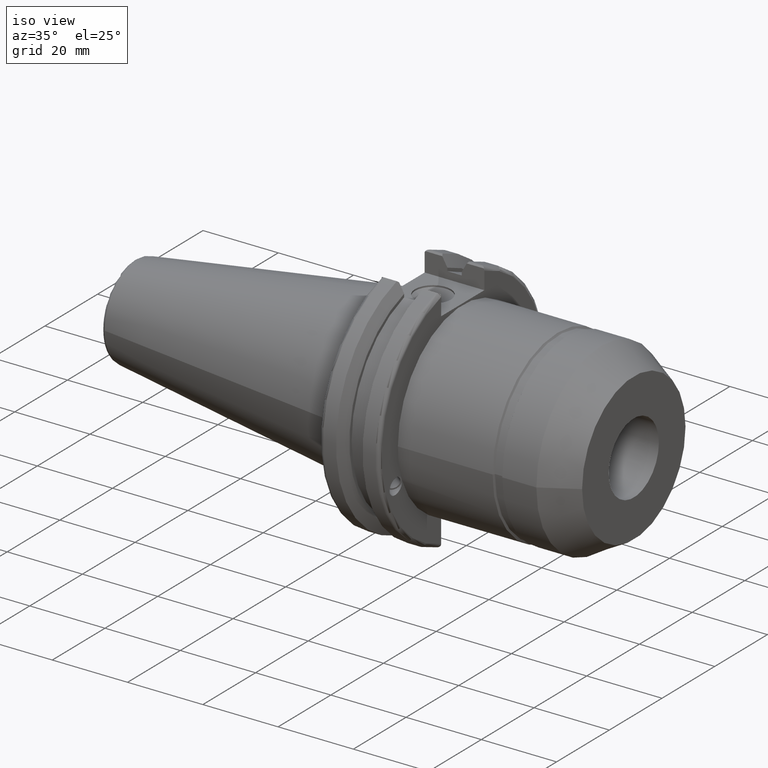
[diagram: clean part render]
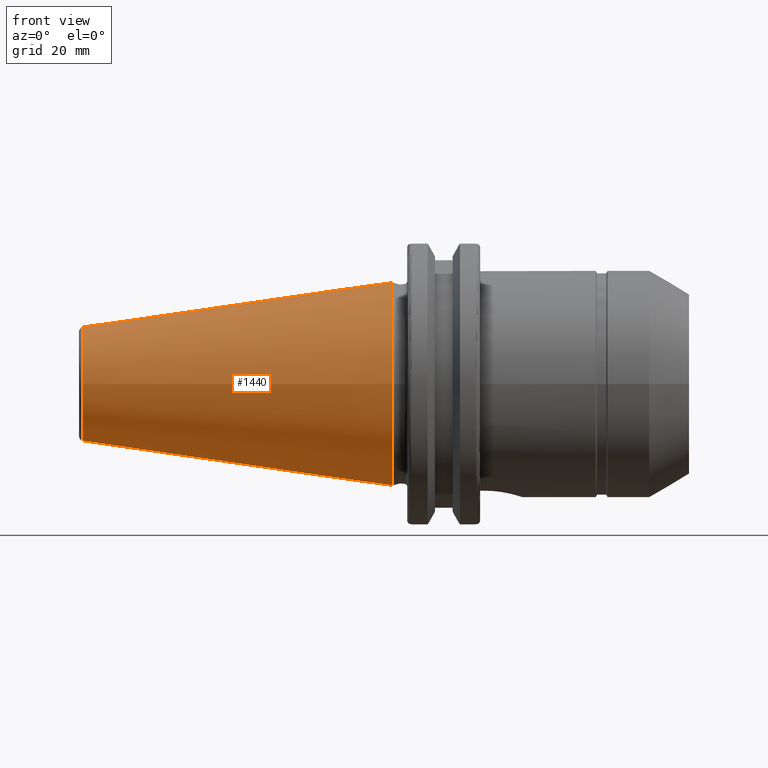
[diagram: tour spotlight — one face highlighted and labeled with its STEP entity id]
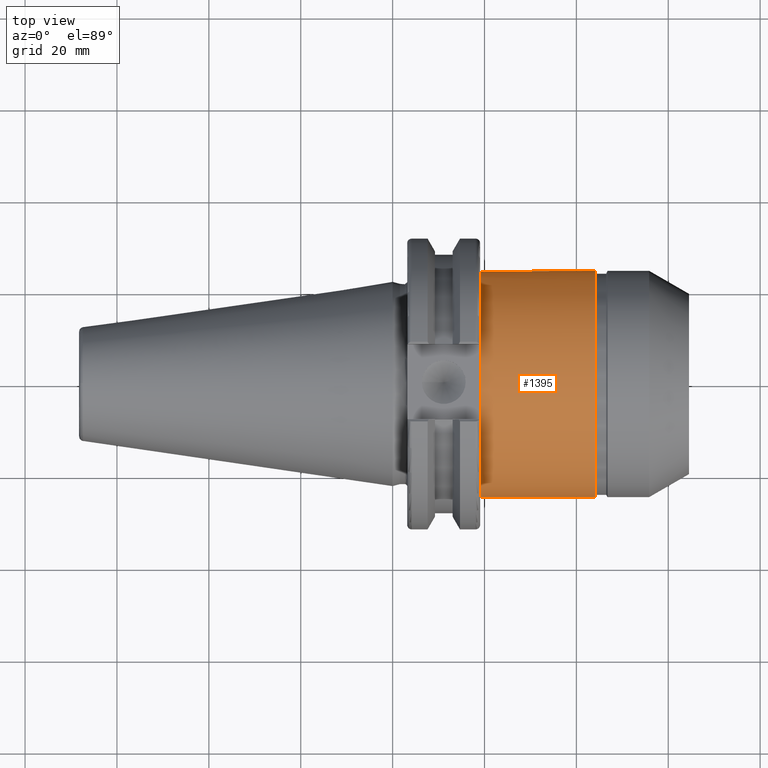
[diagram: tour spotlight — one face highlighted and labeled with its STEP entity id]
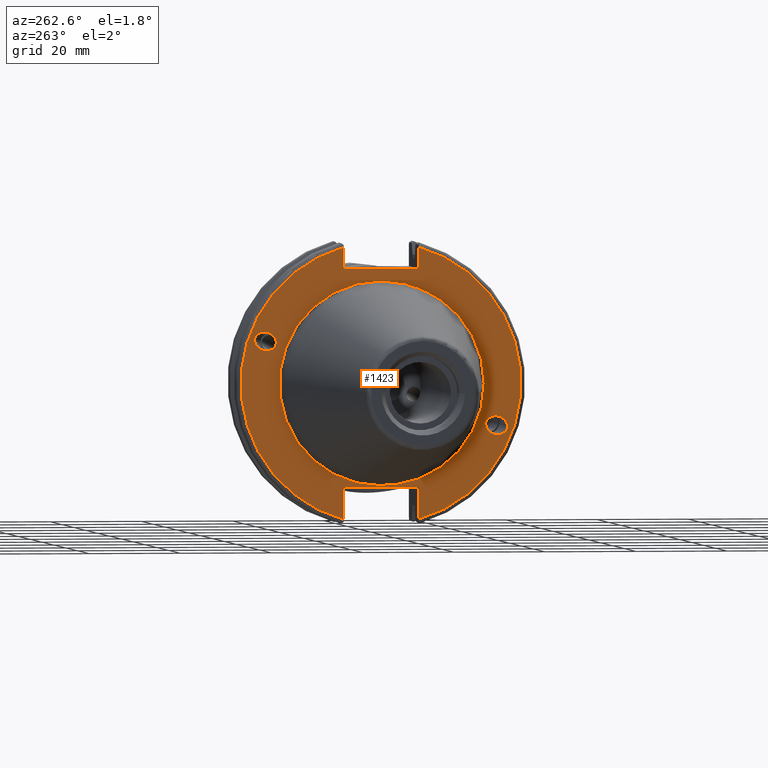
[diagram: tour spotlight — one face highlighted and labeled with its STEP entity id]
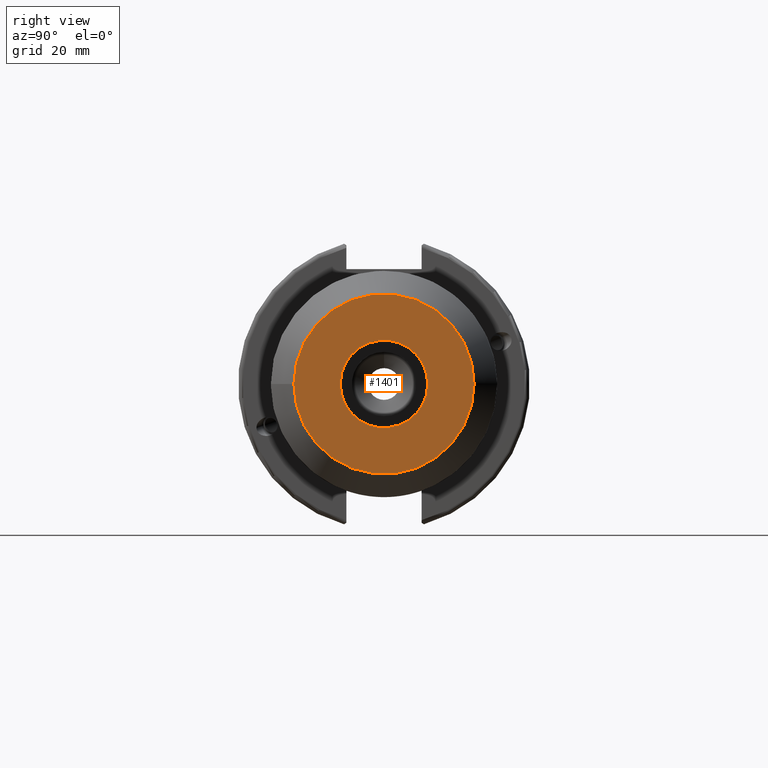
[diagram: tour spotlight — one face highlighted and labeled with its STEP entity id]
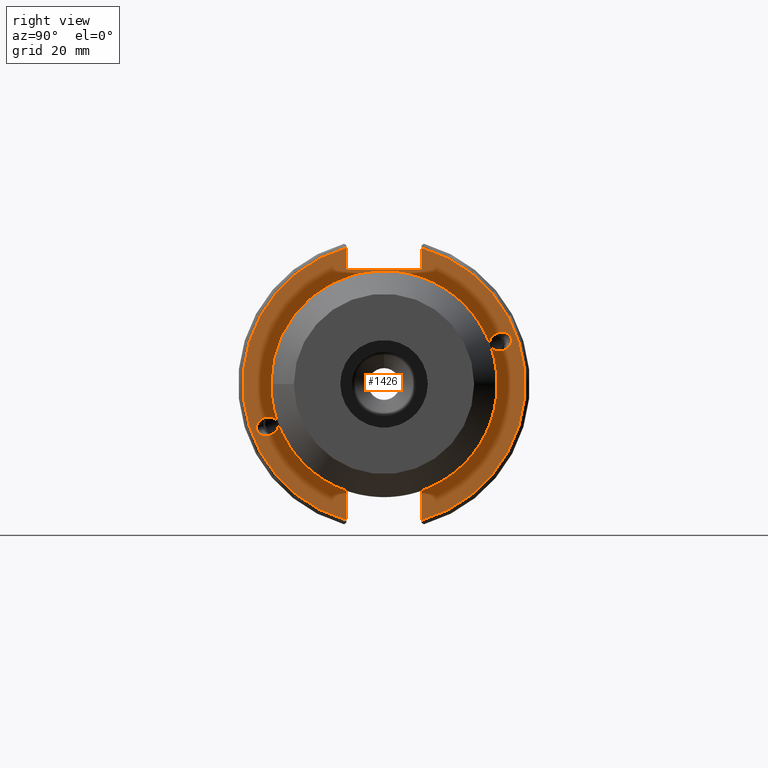
[diagram: tour spotlight — one face highlighted and labeled with its STEP entity id]
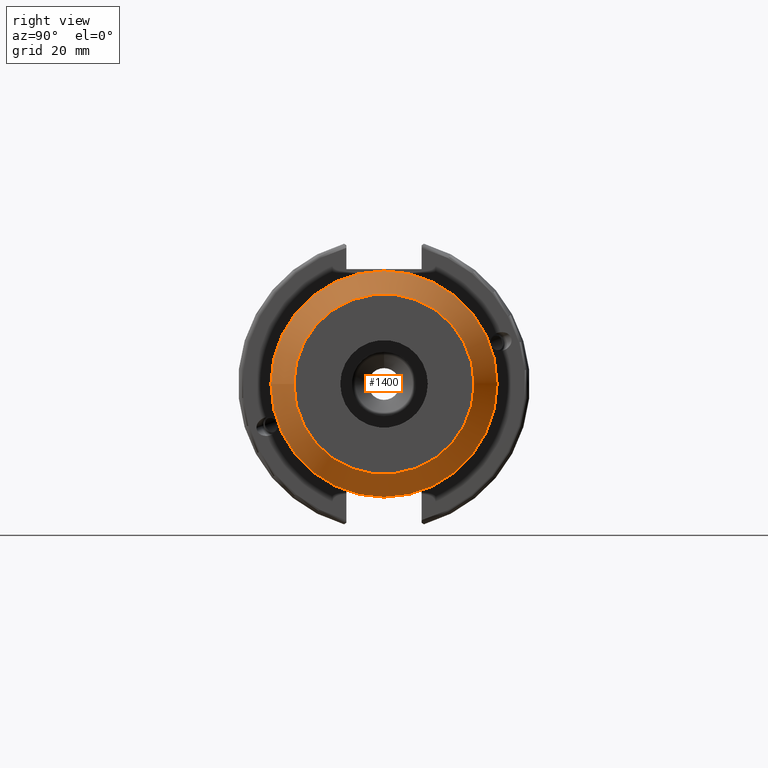
[diagram: tour spotlight — one face highlighted and labeled with its STEP entity id]
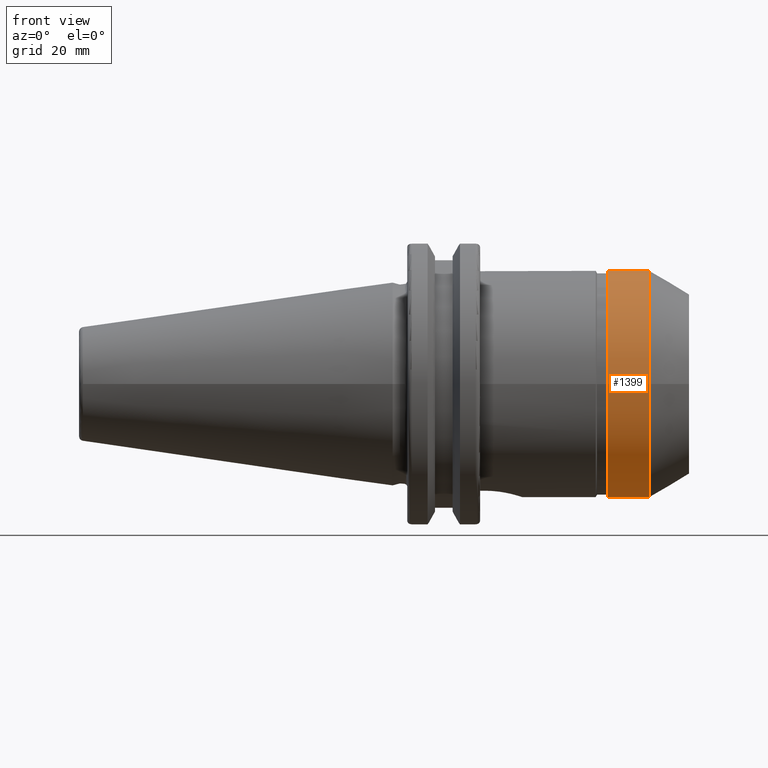
[diagram: tour spotlight — one face highlighted and labeled with its STEP entity id]
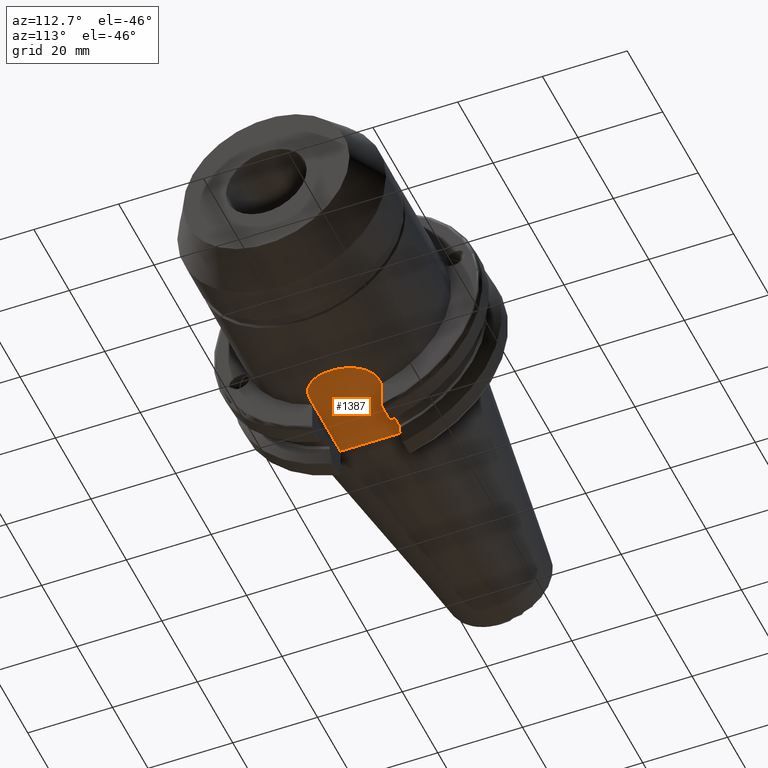
[diagram: tour spotlight — one face highlighted and labeled with its STEP entity id]
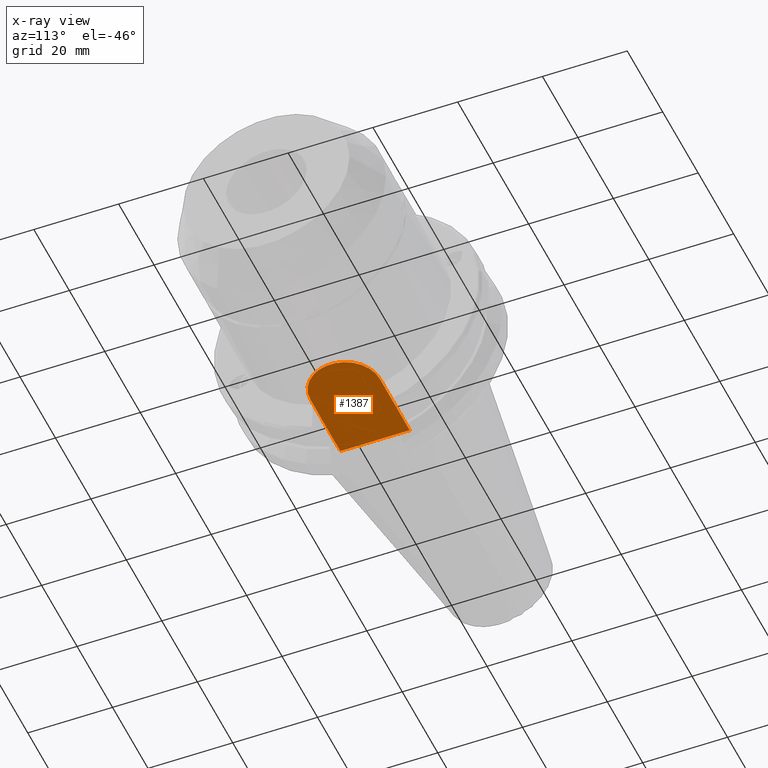
[diagram: x-ray of the same camera — body ghosted, this tour face saturated]
A machine part: a face-by-face anatomy tour. The part has 83 B-rep faces; the first image is the clean iso view, then the 8 largest visible faces are spotlighted one at a time (largest first), each with its STEP entity span.

Face 1 — front view, entity #1440. In plain terms, the highlighted conical surface has half-angle 8.297 deg.
Definition (entity closure, byte-faithful):
#136=CONICAL_SURFACE('',#1628,17.2484375,0.144812498238939);
#201=FACE_OUTER_BOUND('',#295,.T.);
#295=EDGE_LOOP('',(#1232,#1233,#1234,#1235,#1236));
#390=LINE('',#2708,#471);
#471=VECTOR('',#2021,17.2484375);
#538=CIRCLE('',#1622,12.3966635780937);
#539=CIRCLE('',#1623,12.3966635780937);
#543=CIRCLE('',#1629,22.225);
#680=VERTEX_POINT('',#2695);
#681=VERTEX_POINT('',#2696);
#684=VERTEX_POINT('',#2706);
#876=EDGE_CURVE('',#680,#681,#538,.T.);
#877=EDGE_CURVE('',#681,#680,#539,.T.);
#881=EDGE_CURVE('',#684,#684,#543,.T.);
#882=EDGE_CURVE('',#684,#681,#390,.T.);
#1232=ORIENTED_EDGE('',*,*,#881,.F.);
#1233=ORIENTED_EDGE('',*,*,#882,.T.);
#1234=ORIENTED_EDGE('',*,*,#876,.F.);
#1235=ORIENTED_EDGE('',*,*,#877,.F.);
#1236=ORIENTED_EDGE('',*,*,#882,.F.);
#1440=ADVANCED_FACE('',(#201),#136,.T.);
#1622=AXIS2_PLACEMENT_3D('',#2697,#2005,#2006);
#1623=AXIS2_PLACEMENT_3D('',#2698,#2007,#2008);
#1628=AXIS2_PLACEMENT_3D('',#2705,#2017,#2018);
#1629=AXIS2_PLACEMENT_3D('',#2707,#2019,#2020);
#2005=DIRECTION('center_axis',(-1.,0.,0.));
#2006=DIRECTION('ref_axis',(0.,-1.,3.06161699786838E-17));
#2007=DIRECTION('center_axis',(-1.,0.,0.));
#2008=DIRECTION('ref_axis',(0.,-1.,3.06161699786838E-17));
#2017=DIRECTION('center_axis',(1.,0.,0.));
#2018=DIRECTION('ref_axis',(0.,1.,0.));
#2019=DIRECTION('center_axis',(1.,0.,0.));
#2020=DIRECTION('ref_axis',(0.,0.,-1.));
#2021=DIRECTION('',(-0.989532981063282,0.144306893071729,1.76724974695192E-17));
#2695=CARTESIAN_POINT('',(-67.3943068930717,-1.5181534371019E-15,12.3966635780937));
#2696=CARTESIAN_POINT('',(-67.3943068930718,-12.3966635780937,-1.5181534371019E-15));
#2697=CARTESIAN_POINT('Origin',(-67.3943068930717,0.,-1.89769179637738E-15));
#2698=CARTESIAN_POINT('Origin',(-67.3943068930717,0.,-1.89769179637738E-15));
#2705=CARTESIAN_POINT('Origin',(-34.125,0.,0.));
#2706=CARTESIAN_POINT('',(0.,-22.225,-2.72177751110499E-15));
#2707=CARTESIAN_POINT('Origin',(0.,0.,0.));
#2708=CARTESIAN_POINT('',(-34.125,-17.2484375,-2.11232437746682E-15));

Face 2 — top view, entity #1395. In plain terms, the highlighted cylindrical surface (bore or boss wall) has radius 24.625 mm, axis along (1, 0, 0).
Definition (entity closure, byte-faithful):
#106=B_SPLINE_CURVE_WITH_KNOTS('',3,(#2135,#2136,#2137,#2138,#2139,#2140,
#2141,#2142,#2143,#2144,#2145,#2146,#2147,#2148,#2149,#2150,#2151,#2152),
 .UNSPECIFIED.,.F.,.F.,(4,2,2,2,2,2,2,2,4),(-2.48867977072612,-2.17752332053022,
-1.86636687033433,-1.55535337784869,-1.24433988536306,-0.933326392877421,
-0.622312900391784,-0.311156450195892,0.),.UNSPECIFIED.);
#156=FACE_OUTER_BOUND('',#241,.T.);
#241=EDGE_LOOP('',(#962,#963,#964,#965,#966,#967,#968,#969,#970,#971,#972,
#973));
#333=LINE('',#2202,#414);
#334=LINE('',#2206,#415);
#335=LINE('',#2208,#416);
#414=VECTOR('',#1748,24.625);
#415=VECTOR('',#1753,10.);
#416=VECTOR('',#1754,10.);
#498=CIRCLE('',#1515,24.625);
#499=CIRCLE('',#1519,24.625);
#500=CIRCLE('',#1521,24.625);
#501=CIRCLE('',#1522,24.625);
#502=CIRCLE('',#1523,24.625);
#503=CIRCLE('',#1524,24.625);
#504=CIRCLE('',#1525,24.625);
#564=VERTEX_POINT('',#2133);
#565=VERTEX_POINT('',#2134);
#576=VERTEX_POINT('',#2185);
#578=VERTEX_POINT('',#2188);
#579=VERTEX_POINT('',#2192);
#581=VERTEX_POINT('',#2195);
#582=VERTEX_POINT('',#2199);
#583=VERTEX_POINT('',#2201);
#584=VERTEX_POINT('',#2204);
#585=VERTEX_POINT('',#2207);
#707=EDGE_CURVE('',#564,#565,#106,.T.);
#725=EDGE_CURVE('',#576,#578,#498,.T.);
#728=EDGE_CURVE('',#579,#581,#499,.T.);
#729=EDGE_CURVE('',#582,#582,#500,.T.);
#730=EDGE_CURVE('',#582,#583,#333,.T.);
#731=EDGE_CURVE('',#579,#583,#501,.T.);
#732=EDGE_CURVE('',#584,#581,#502,.T.);
#733=EDGE_CURVE('',#584,#564,#334,.T.);
#734=EDGE_CURVE('',#565,#585,#335,.T.);
#735=EDGE_CURVE('',#576,#585,#503,.T.);
#736=EDGE_CURVE('',#583,#578,#504,.T.);
#962=ORIENTED_EDGE('',*,*,#729,.F.);
#963=ORIENTED_EDGE('',*,*,#730,.T.);
#964=ORIENTED_EDGE('',*,*,#731,.F.);
#965=ORIENTED_EDGE('',*,*,#728,.T.);
#966=ORIENTED_EDGE('',*,*,#732,.F.);
#967=ORIENTED_EDGE('',*,*,#733,.T.);
#968=ORIENTED_EDGE('',*,*,#707,.T.);
#969=ORIENTED_EDGE('',*,*,#734,.T.);
#970=ORIENTED_EDGE('',*,*,#735,.F.);
#971=ORIENTED_EDGE('',*,*,#725,.T.);
#972=ORIENTED_EDGE('',*,*,#736,.F.);
#973=ORIENTED_EDGE('',*,*,#730,.F.);
#1358=CYLINDRICAL_SURFACE('',#1520,24.625);
#1395=ADVANCED_FACE('',(#156),#1358,.T.);
#1515=AXIS2_PLACEMENT_3D('',#2190,#1734,#1735);
#1519=AXIS2_PLACEMENT_3D('',#2197,#1742,#1743);
#1520=AXIS2_PLACEMENT_3D('',#2198,#1744,#1745);
#1521=AXIS2_PLACEMENT_3D('',#2200,#1746,#1747);
#1522=AXIS2_PLACEMENT_3D('',#2203,#1749,#1750);
#1523=AXIS2_PLACEMENT_3D('',#2205,#1751,#1752);
#1524=AXIS2_PLACEMENT_3D('',#2209,#1755,#1756);
#1525=AXIS2_PLACEMENT_3D('',#2210,#1757,#1758);
#1734=DIRECTION('center_axis',(1.,0.,0.));
#1735=DIRECTION('ref_axis',(0.,0.,-1.));
#1742=DIRECTION('center_axis',(1.,0.,0.));
#1743=DIRECTION('ref_axis',(0.,0.,-1.));
#1744=DIRECTION('center_axis',(1.,0.,0.));
#1745=DIRECTION('ref_axis',(0.,1.,0.));
#1746=DIRECTION('center_axis',(1.,0.,0.));
#1747=DIRECTION('ref_axis',(0.,0.,-1.));
#1748=DIRECTION('',(-1.,0.,0.));
#1749=DIRECTION('center_axis',(-1.,0.,0.));
#1750=DIRECTION('ref_axis',(0.,1.,0.));
#1751=DIRECTION('center_axis',(-1.,0.,0.));
#1752=DIRECTION('ref_axis',(0.,1.,0.));
#1753=DIRECTION('',(1.,0.,0.));
#1754=DIRECTION('',(-1.,0.,0.));
#1755=DIRECTION('center_axis',(-1.,0.,0.));
#1756=DIRECTION('ref_axis',(0.,1.,0.));
#1757=DIRECTION('center_axis',(-1.,0.,0.));
#1758=DIRECTION('ref_axis',(0.,1.,0.));
#2133=CARTESIAN_POINT('',(20.05,-8.19,-23.2231463199972));
#2134=CARTESIAN_POINT('',(20.05,8.19,-23.2231463199972));
#2135=CARTESIAN_POINT('Ctrl Pts',(20.05,-8.19,-23.2231463199972));
#2136=CARTESIAN_POINT('Ctrl Pts',(21.0871881673196,-8.19,-23.2231463199972));
#2137=CARTESIAN_POINT('Ctrl Pts',(22.1875479670497,-7.98109209876142,-23.2999292072761));
#2138=CARTESIAN_POINT('Ctrl Pts',(24.2027215432426,-7.14295859832084,-23.5703768565017));
#2139=CARTESIAN_POINT('Ctrl Pts',(25.1183060805017,-6.51410299533393,-23.7594247464217));
#2140=CARTESIAN_POINT('Ctrl Pts',(26.5637708668881,-5.06863820894757,-24.109172541481));
#2141=CARTESIAN_POINT('Ctrl Pts',(27.1928821959158,-4.15292132388749,-24.2935472606565));
#2142=CARTESIAN_POINT('Ctrl Pts',(28.0312063616217,-2.13725715559638,-24.553112345669));
#2143=CARTESIAN_POINT('Ctrl Pts',(28.24,-1.03671164161879,-24.625));
#2144=CARTESIAN_POINT('Ctrl Pts',(28.24,1.03671164161879,-24.625));
#2145=CARTESIAN_POINT('Ctrl Pts',(28.0312063616217,2.13725715559638,-24.553112345669));
#2146=CARTESIAN_POINT('Ctrl Pts',(27.1928821959158,4.15292132388749,-24.2935472606565));
#2147=CARTESIAN_POINT('Ctrl Pts',(26.5637708668881,5.06863820894756,-24.109172541481));
#2148=CARTESIAN_POINT('Ctrl Pts',(25.1183060805017,6.51410299533393,-23.7594247464217));
#2149=CARTESIAN_POINT('Ctrl Pts',(24.2027215432426,7.14295859832085,-23.5703768565017));
#2150=CARTESIAN_POINT('Ctrl Pts',(22.1875479670497,7.98109209876143,-23.2999292072761));
#2151=CARTESIAN_POINT('Ctrl Pts',(21.0871881673196,8.19,-23.2231463199972));
#2152=CARTESIAN_POINT('Ctrl Pts',(20.05,8.19,-23.2231463199972));
#2185=CARTESIAN_POINT('',(19.05,23.289794776421,7.9985051273468));
#2188=CARTESIAN_POINT('',(19.05,22.9823578617315,8.84318110836304));
#2190=CARTESIAN_POINT('Origin',(19.05,0.,0.));
#2192=CARTESIAN_POINT('',(19.05,-23.289794776421,-7.99850512734678));
#2195=CARTESIAN_POINT('',(19.05,-22.9823578617315,-8.84318110836306));
#2197=CARTESIAN_POINT('Origin',(19.05,0.,0.));
#2198=CARTESIAN_POINT('Origin',(31.6306624327026,0.,0.));
#2199=CARTESIAN_POINT('',(44.2113248654052,-24.625,-3.01569274290036E-15));
#2200=CARTESIAN_POINT('Origin',(44.2113248654052,0.,0.));
#2201=CARTESIAN_POINT('',(19.05,-24.625,-3.01569274290036E-15));
#2202=CARTESIAN_POINT('',(31.6306624327026,-24.625,-3.01569274290036E-15));
#2203=CARTESIAN_POINT('Origin',(19.05,0.,0.));
#2204=CARTESIAN_POINT('',(19.05,-8.19,-23.2231463199972));
#2205=CARTESIAN_POINT('Origin',(19.05,0.,0.));
#2206=CARTESIAN_POINT('',(31.6306624327026,-8.19,-23.2231463199972));
#2207=CARTESIAN_POINT('',(19.05,8.19,-23.2231463199972));
#2208=CARTESIAN_POINT('',(31.6306624327026,8.19,-23.2231463199972));
#2209=CARTESIAN_POINT('Origin',(19.05,0.,0.));
#2210=CARTESIAN_POINT('Origin',(19.05,0.,0.));

Face 3 — auxiliary view, entity #1423. In plain terms, the highlighted planar face has unit normal (-1, 0, 0).
Definition (entity closure, byte-faithful):
#44=ELLIPSE('',#1560,2.44154917752291,1.99999999999999);
#54=ELLIPSE('',#1590,2.44154917752291,2.);
#69=FACE_BOUND('',#275,.T.);
#70=FACE_BOUND('',#276,.T.);
#71=FACE_BOUND('',#277,.T.);
#85=PLANE('',#1596);
#184=FACE_OUTER_BOUND('',#274,.T.);
#274=EDGE_LOOP('',(#1114,#1115,#1116,#1117,#1118,#1119,#1120,#1121));
#275=EDGE_LOOP('',(#1122));
#276=EDGE_LOOP('',(#1123));
#277=EDGE_LOOP('',(#1124));
#328=LINE('',#2161,#409);
#357=LINE('',#2447,#438);
#358=LINE('',#2449,#439);
#359=LINE('',#2451,#440);
#360=LINE('',#2454,#441);
#361=LINE('',#2455,#442);
#409=VECTOR('',#1699,10.);
#438=VECTOR('',#1924,10.);
#439=VECTOR('',#1925,10.);
#440=VECTOR('',#1926,10.);
#441=VECTOR('',#1929,10.);
#442=VECTOR('',#1930,10.);
#526=CIRCLE('',#1594,22.3);
#528=CIRCLE('',#1597,30.75);
#529=CIRCLE('',#1598,30.75);
#568=VERTEX_POINT('',#2159);
#569=VERTEX_POINT('',#2160);
#606=VERTEX_POINT('',#2325);
#624=VERTEX_POINT('',#2431);
#627=VERTEX_POINT('',#2438);
#628=VERTEX_POINT('',#2443);
#629=VERTEX_POINT('',#2444);
#630=VERTEX_POINT('',#2446);
#631=VERTEX_POINT('',#2448);
#632=VERTEX_POINT('',#2450);
#633=VERTEX_POINT('',#2452);
#711=EDGE_CURVE('',#568,#569,#328,.T.);
#771=EDGE_CURVE('',#606,#606,#44,.T.);
#802=EDGE_CURVE('',#624,#624,#54,.T.);
#805=EDGE_CURVE('',#627,#627,#526,.T.);
#807=EDGE_CURVE('',#628,#629,#528,.T.);
#808=EDGE_CURVE('',#628,#630,#357,.T.);
#809=EDGE_CURVE('',#630,#631,#358,.T.);
#810=EDGE_CURVE('',#631,#632,#359,.T.);
#811=EDGE_CURVE('',#633,#632,#529,.T.);
#812=EDGE_CURVE('',#633,#568,#360,.T.);
#813=EDGE_CURVE('',#569,#629,#361,.T.);
#1114=ORIENTED_EDGE('',*,*,#807,.F.);
#1115=ORIENTED_EDGE('',*,*,#808,.T.);
#1116=ORIENTED_EDGE('',*,*,#809,.T.);
#1117=ORIENTED_EDGE('',*,*,#810,.T.);
#1118=ORIENTED_EDGE('',*,*,#811,.F.);
#1119=ORIENTED_EDGE('',*,*,#812,.T.);
#1120=ORIENTED_EDGE('',*,*,#711,.T.);
#1121=ORIENTED_EDGE('',*,*,#813,.T.);
#1122=ORIENTED_EDGE('',*,*,#771,.T.);
#1123=ORIENTED_EDGE('',*,*,#802,.T.);
#1124=ORIENTED_EDGE('',*,*,#805,.F.);
#1423=ADVANCED_FACE('',(#184,#69,#70,#71),#85,.T.);
#1560=AXIS2_PLACEMENT_3D('',#2327,#1839,#1840);
#1590=AXIS2_PLACEMENT_3D('',#2433,#1908,#1909);
#1594=AXIS2_PLACEMENT_3D('',#2440,#1916,#1917);
#1596=AXIS2_PLACEMENT_3D('',#2442,#1920,#1921);
#1597=AXIS2_PLACEMENT_3D('',#2445,#1922,#1923);
#1598=AXIS2_PLACEMENT_3D('',#2453,#1927,#1928);
#1699=DIRECTION('',(0.,-1.,0.));
#1839=DIRECTION('center_axis',(1.,0.,0.));
#1840=DIRECTION('ref_axis',(0.,-0.939692620785908,-0.342020143325669));
#1908=DIRECTION('center_axis',(1.,0.,0.));
#1909=DIRECTION('ref_axis',(0.,0.939692620785908,0.342020143325669));
#1916=DIRECTION('center_axis',(-1.,0.,0.));
#1917=DIRECTION('ref_axis',(0.,-1.,1.83697019872103E-16));
#1920=DIRECTION('center_axis',(-1.,0.,0.));
#1921=DIRECTION('ref_axis',(0.,0.,1.));
#1922=DIRECTION('center_axis',(1.,0.,0.));
#1923=DIRECTION('ref_axis',(0.,-1.,1.60812264967664E-16));
#1924=DIRECTION('',(0.,0.,-1.));
#1925=DIRECTION('',(0.,1.,0.));
#1926=DIRECTION('',(0.,0.,1.));
#1927=DIRECTION('center_axis',(1.,0.,0.));
#1928=DIRECTION('ref_axis',(0.,1.,1.60812264967664E-16));
#1929=DIRECTION('',(0.,0.,1.));
#1930=DIRECTION('',(0.,0.,-1.));
#2159=CARTESIAN_POINT('',(3.175,8.19,-22.6));
#2160=CARTESIAN_POINT('',(3.175,-8.19,-22.6));
#2161=CARTESIAN_POINT('',(3.175,15.875,-22.6));
#2325=CARTESIAN_POINT('',(3.175,-23.0773950158154,-8.39948487016));
#2327=CARTESIAN_POINT('Origin',(3.175,-25.3717007612195,-9.23454386979305));
#2431=CARTESIAN_POINT('',(3.175,23.0773950158154,8.39948487016));
#2433=CARTESIAN_POINT('Origin',(3.175,25.3717007612195,9.23454386979306));
#2438=CARTESIAN_POINT('',(3.175,-2.7309623620986E-15,22.3));
#2440=CARTESIAN_POINT('Origin',(3.175,0.,0.));
#2442=CARTESIAN_POINT('Origin',(3.175,31.75,0.));
#2443=CARTESIAN_POINT('',(3.175,-8.18999999999999,29.6392712461019));
#2444=CARTESIAN_POINT('',(3.175,-8.19,-29.6392712461019));
#2445=CARTESIAN_POINT('Origin',(3.175,0.,0.));
#2446=CARTESIAN_POINT('',(3.175,-8.19,25.));
#2447=CARTESIAN_POINT('',(3.175,-8.18999999999999,12.5));
#2448=CARTESIAN_POINT('',(3.175,8.19,25.));
#2449=CARTESIAN_POINT('',(3.175,15.875,25.));
#2450=CARTESIAN_POINT('',(3.175,8.19,29.6392712461019));
#2451=CARTESIAN_POINT('',(3.175,8.19,12.5));
#2452=CARTESIAN_POINT('',(3.175,8.18999999999999,-29.6392712461019));
#2453=CARTESIAN_POINT('Origin',(3.175,0.,0.));
#2454=CARTESIAN_POINT('',(3.175,8.18999999999999,-11.3));
#2455=CARTESIAN_POINT('',(3.175,-8.19,-11.3));

Face 4 — right view, entity #1401. In plain terms, the highlighted planar face has unit normal (1, 0, 0).
Definition (entity closure, byte-faithful):
#64=FACE_BOUND('',#248,.T.);
#80=PLANE('',#1536);
#162=FACE_OUTER_BOUND('',#247,.T.);
#247=EDGE_LOOP('',(#994));
#248=EDGE_LOOP('',(#995));
#492=CIRCLE('',#1503,9.525);
#509=CIRCLE('',#1535,19.625);
#571=VERTEX_POINT('',#2168);
#590=VERTEX_POINT('',#2228);
#715=EDGE_CURVE('',#571,#571,#492,.T.);
#745=EDGE_CURVE('',#590,#590,#509,.T.);
#994=ORIENTED_EDGE('',*,*,#745,.T.);
#995=ORIENTED_EDGE('',*,*,#715,.T.);
#1401=ADVANCED_FACE('',(#162,#64),#80,.T.);
#1503=AXIS2_PLACEMENT_3D('',#2169,#1708,#1709);
#1535=AXIS2_PLACEMENT_3D('',#2229,#1781,#1782);
#1536=AXIS2_PLACEMENT_3D('',#2231,#1784,#1785);
#1708=DIRECTION('center_axis',(-1.,0.,0.));
#1709=DIRECTION('ref_axis',(0.,1.,0.));
#1781=DIRECTION('center_axis',(1.,0.,0.));
#1782=DIRECTION('ref_axis',(0.,0.,-1.));
#1784=DIRECTION('center_axis',(1.,0.,0.));
#1785=DIRECTION('ref_axis',(0.,0.,-1.));
#2168=CARTESIAN_POINT('',(64.5,-9.525,1.16647607618785E-15));
#2169=CARTESIAN_POINT('Origin',(64.5,0.,0.));
#2228=CARTESIAN_POINT('',(64.5,-19.625,-2.40336934332668E-15));
#2229=CARTESIAN_POINT('Origin',(64.5,0.,0.));
#2231=CARTESIAN_POINT('Origin',(64.5,4.26636328652959E-15,0.));

Face 5 — right view, entity #1426. In plain terms, the highlighted planar face has unit normal (1, 0, 0).
Definition (entity closure, byte-faithful):
#43=ELLIPSE('',#1551,2.44154917752291,2.);
#53=ELLIPSE('',#1583,2.44154917752291,2.);
#86=PLANE('',#1604);
#187=FACE_OUTER_BOUND('',#280,.T.);
#280=EDGE_LOOP('',(#1136,#1137,#1138,#1139,#1140,#1141,#1142,#1143,#1144,
#1145,#1146,#1147,#1148));
#363=LINE('',#2498,#444);
#364=LINE('',#2500,#445);
#365=LINE('',#2502,#446);
#366=LINE('',#2504,#447);
#367=LINE('',#2507,#448);
#444=VECTOR('',#1944,10.);
#445=VECTOR('',#1945,10.);
#446=VECTOR('',#1946,10.);
#447=VECTOR('',#1947,10.);
#448=VECTOR('',#1950,10.);
#501=CIRCLE('',#1522,24.625);
#502=CIRCLE('',#1523,24.625);
#503=CIRCLE('',#1524,24.625);
#504=CIRCLE('',#1525,24.625);
#531=CIRCLE('',#1602,30.75);
#533=CIRCLE('',#1605,30.75);
#576=VERTEX_POINT('',#2185);
#578=VERTEX_POINT('',#2188);
#579=VERTEX_POINT('',#2192);
#581=VERTEX_POINT('',#2195);
#583=VERTEX_POINT('',#2201);
#584=VERTEX_POINT('',#2204);
#585=VERTEX_POINT('',#2207);
#636=VERTEX_POINT('',#2462);
#637=VERTEX_POINT('',#2469);
#641=VERTEX_POINT('',#2499);
#642=VERTEX_POINT('',#2501);
#643=VERTEX_POINT('',#2503);
#644=VERTEX_POINT('',#2505);
#731=EDGE_CURVE('',#579,#583,#501,.T.);
#732=EDGE_CURVE('',#584,#581,#502,.T.);
#735=EDGE_CURVE('',#576,#585,#503,.T.);
#736=EDGE_CURVE('',#583,#578,#504,.T.);
#762=EDGE_CURVE('',#581,#579,#43,.T.);
#795=EDGE_CURVE('',#578,#576,#53,.T.);
#817=EDGE_CURVE('',#636,#637,#531,.T.);
#822=EDGE_CURVE('',#585,#637,#363,.T.);
#823=EDGE_CURVE('',#636,#641,#364,.T.);
#824=EDGE_CURVE('',#641,#642,#365,.T.);
#825=EDGE_CURVE('',#642,#643,#366,.T.);
#826=EDGE_CURVE('',#644,#643,#533,.T.);
#827=EDGE_CURVE('',#644,#584,#367,.T.);
#1136=ORIENTED_EDGE('',*,*,#735,.T.);
#1137=ORIENTED_EDGE('',*,*,#822,.T.);
#1138=ORIENTED_EDGE('',*,*,#817,.F.);
#1139=ORIENTED_EDGE('',*,*,#823,.T.);
#1140=ORIENTED_EDGE('',*,*,#824,.T.);
#1141=ORIENTED_EDGE('',*,*,#825,.T.);
#1142=ORIENTED_EDGE('',*,*,#826,.F.);
#1143=ORIENTED_EDGE('',*,*,#827,.T.);
#1144=ORIENTED_EDGE('',*,*,#732,.T.);
#1145=ORIENTED_EDGE('',*,*,#762,.T.);
#1146=ORIENTED_EDGE('',*,*,#731,.T.);
#1147=ORIENTED_EDGE('',*,*,#736,.T.);
#1148=ORIENTED_EDGE('',*,*,#795,.T.);
#1426=ADVANCED_FACE('',(#187),#86,.T.);
#1522=AXIS2_PLACEMENT_3D('',#2203,#1749,#1750);
#1523=AXIS2_PLACEMENT_3D('',#2205,#1751,#1752);
#1524=AXIS2_PLACEMENT_3D('',#2209,#1755,#1756);
#1525=AXIS2_PLACEMENT_3D('',#2210,#1757,#1758);
#1551=AXIS2_PLACEMENT_3D('',#2308,#1816,#1817);
#1583=AXIS2_PLACEMENT_3D('',#2418,#1890,#1891);
#1602=AXIS2_PLACEMENT_3D('',#2470,#1938,#1939);
#1604=AXIS2_PLACEMENT_3D('',#2497,#1942,#1943);
#1605=AXIS2_PLACEMENT_3D('',#2506,#1948,#1949);
#1749=DIRECTION('center_axis',(-1.,0.,0.));
#1750=DIRECTION('ref_axis',(0.,1.,0.));
#1751=DIRECTION('center_axis',(-1.,0.,0.));
#1752=DIRECTION('ref_axis',(0.,1.,0.));
#1755=DIRECTION('center_axis',(-1.,0.,0.));
#1756=DIRECTION('ref_axis',(0.,1.,0.));
#1757=DIRECTION('center_axis',(-1.,0.,0.));
#1758=DIRECTION('ref_axis',(0.,1.,0.));
#1816=DIRECTION('center_axis',(-1.,0.,0.));
#1817=DIRECTION('ref_axis',(5.68400912649003E-17,-0.939692620785908,-0.34202014332567));
#1890=DIRECTION('center_axis',(-1.,0.,0.));
#1891=DIRECTION('ref_axis',(5.68400912649003E-17,0.939692620785908,0.34202014332567));
#1938=DIRECTION('center_axis',(-1.,0.,0.));
#1939=DIRECTION('ref_axis',(0.,1.,-6.12323399573677E-17));
#1942=DIRECTION('center_axis',(1.,0.,0.));
#1943=DIRECTION('ref_axis',(0.,0.,-1.));
#1944=DIRECTION('',(0.,0.,-1.));
#1945=DIRECTION('',(0.,0.,-1.));
#1946=DIRECTION('',(0.,-1.,0.));
#1947=DIRECTION('',(0.,0.,1.));
#1948=DIRECTION('center_axis',(-1.,0.,0.));
#1949=DIRECTION('ref_axis',(0.,-1.,1.60812264967664E-16));
#1950=DIRECTION('',(0.,0.,1.));
#2185=CARTESIAN_POINT('',(19.05,23.289794776421,7.9985051273468));
#2188=CARTESIAN_POINT('',(19.05,22.9823578617315,8.84318110836304));
#2192=CARTESIAN_POINT('',(19.05,-23.289794776421,-7.99850512734678));
#2195=CARTESIAN_POINT('',(19.05,-22.9823578617315,-8.84318110836306));
#2201=CARTESIAN_POINT('',(19.05,-24.625,-3.01569274290036E-15));
#2203=CARTESIAN_POINT('Origin',(19.05,0.,0.));
#2204=CARTESIAN_POINT('',(19.05,-8.19,-23.2231463199972));
#2205=CARTESIAN_POINT('Origin',(19.05,0.,0.));
#2207=CARTESIAN_POINT('',(19.05,8.19,-23.2231463199972));
#2209=CARTESIAN_POINT('Origin',(19.05,0.,0.));
#2210=CARTESIAN_POINT('Origin',(19.05,0.,0.));
#2308=CARTESIAN_POINT('Origin',(19.05,-25.3717007612195,-9.23454386979305));
#2418=CARTESIAN_POINT('Origin',(19.05,25.3717007612195,9.23454386979306));
#2462=CARTESIAN_POINT('',(19.05,8.19,29.6392712461019));
#2469=CARTESIAN_POINT('',(19.05,8.19,-29.6392712461019));
#2470=CARTESIAN_POINT('Origin',(19.05,0.,0.));
#2497=CARTESIAN_POINT('Origin',(19.05,0.,0.));
#2498=CARTESIAN_POINT('',(19.05,8.19,-11.3));
#2499=CARTESIAN_POINT('',(19.05,8.19,25.));
#2500=CARTESIAN_POINT('',(19.05,8.19,12.5));
#2501=CARTESIAN_POINT('',(19.05,-8.19,25.));
#2502=CARTESIAN_POINT('',(19.05,0.,25.));
#2503=CARTESIAN_POINT('',(19.05,-8.19,29.6392712461019));
#2504=CARTESIAN_POINT('',(19.05,-8.19,12.5));
#2505=CARTESIAN_POINT('',(19.05,-8.19,-29.6392712461019));
#2506=CARTESIAN_POINT('Origin',(19.05,0.,0.));
#2507=CARTESIAN_POINT('',(19.05,-8.19,-11.3));

Face 6 — right view, entity #1400. In plain terms, the highlighted conical surface has half-angle 30 deg.
Definition (entity closure, byte-faithful):
#132=CONICAL_SURFACE('',#1534,22.125,0.523598775598299);
#161=FACE_OUTER_BOUND('',#246,.T.);
#246=EDGE_LOOP('',(#990,#991,#992,#993));
#340=LINE('',#2230,#421);
#421=VECTOR('',#1783,22.125);
#508=CIRCLE('',#1533,24.625);
#509=CIRCLE('',#1535,19.625);
#589=VERTEX_POINT('',#2224);
#590=VERTEX_POINT('',#2228);
#743=EDGE_CURVE('',#589,#589,#508,.T.);
#745=EDGE_CURVE('',#590,#590,#509,.T.);
#746=EDGE_CURVE('',#590,#589,#340,.T.);
#990=ORIENTED_EDGE('',*,*,#745,.F.);
#991=ORIENTED_EDGE('',*,*,#746,.T.);
#992=ORIENTED_EDGE('',*,*,#743,.T.);
#993=ORIENTED_EDGE('',*,*,#746,.F.);
#1400=ADVANCED_FACE('',(#161),#132,.T.);
#1533=AXIS2_PLACEMENT_3D('',#2225,#1776,#1777);
#1534=AXIS2_PLACEMENT_3D('',#2227,#1779,#1780);
#1535=AXIS2_PLACEMENT_3D('',#2229,#1781,#1782);
#1776=DIRECTION('center_axis',(1.,0.,0.));
#1777=DIRECTION('ref_axis',(0.,0.,-1.));
#1779=DIRECTION('center_axis',(-1.,0.,0.));
#1780=DIRECTION('ref_axis',(0.,1.,0.));
#1781=DIRECTION('center_axis',(1.,0.,0.));
#1782=DIRECTION('ref_axis',(0.,0.,-1.));
#1783=DIRECTION('',(-0.866025403784439,-0.5,-6.12323399573676E-17));
#2224=CARTESIAN_POINT('',(55.8397459621556,-24.625,-3.01569274290036E-15));
#2225=CARTESIAN_POINT('Origin',(55.8397459621556,0.,0.));
#2227=CARTESIAN_POINT('Origin',(60.1698729810778,0.,0.));
#2228=CARTESIAN_POINT('',(64.5,-19.625,-2.40336934332668E-15));
#2229=CARTESIAN_POINT('Origin',(64.5,0.,0.));
#2230=CARTESIAN_POINT('',(60.1698729810778,-22.125,-2.70953104311352E-15));

Face 7 — front view, entity #1399. In plain terms, the highlighted cylindrical surface (bore or boss wall) has radius 24.625 mm, axis along (1, 0, 0).
Definition (entity closure, byte-faithful):
#160=FACE_OUTER_BOUND('',#245,.T.);
#245=EDGE_LOOP('',(#986,#987,#988,#989));
#339=LINE('',#2226,#420);
#420=VECTOR('',#1778,24.625);
#507=CIRCLE('',#1531,24.625);
#508=CIRCLE('',#1533,24.625);
#588=VERTEX_POINT('',#2220);
#589=VERTEX_POINT('',#2224);
#741=EDGE_CURVE('',#588,#588,#507,.T.);
#743=EDGE_CURVE('',#589,#589,#508,.T.);
#744=EDGE_CURVE('',#589,#588,#339,.T.);
#986=ORIENTED_EDGE('',*,*,#743,.F.);
#987=ORIENTED_EDGE('',*,*,#744,.T.);
#988=ORIENTED_EDGE('',*,*,#741,.T.);
#989=ORIENTED_EDGE('',*,*,#744,.F.);
#1360=CYLINDRICAL_SURFACE('',#1532,24.625);
#1399=ADVANCED_FACE('',(#160),#1360,.T.);
#1531=AXIS2_PLACEMENT_3D('',#2221,#1771,#1772);
#1532=AXIS2_PLACEMENT_3D('',#2223,#1774,#1775);
#1533=AXIS2_PLACEMENT_3D('',#2225,#1776,#1777);
#1771=DIRECTION('center_axis',(1.,0.,0.));
#1772=DIRECTION('ref_axis',(0.,0.,-1.));
#1774=DIRECTION('center_axis',(1.,0.,0.));
#1775=DIRECTION('ref_axis',(0.,1.,0.));
#1776=DIRECTION('center_axis',(1.,0.,0.));
#1777=DIRECTION('ref_axis',(0.,0.,-1.));
#1778=DIRECTION('',(-1.,0.,0.));
#2220=CARTESIAN_POINT('',(46.7886751345948,-24.625,-3.01569274290036E-15));
#2221=CARTESIAN_POINT('Origin',(46.7886751345948,0.,0.));
#2223=CARTESIAN_POINT('Origin',(51.3142105483752,0.,0.));
#2224=CARTESIAN_POINT('',(55.8397459621556,-24.625,-3.01569274290036E-15));
#2225=CARTESIAN_POINT('Origin',(55.8397459621556,0.,0.));
#2226=CARTESIAN_POINT('',(51.3142105483752,-24.625,-3.01569274290036E-15));

Face 8 — auxiliary view, entity #1387. An x-ray twin of the same camera follows (body ghosted, this face saturated) — the face is partly hidden behind the body. In plain terms, the highlighted planar face has unit normal (0, 0, 1).
Definition (entity closure, byte-faithful):
#75=PLANE('',#1499);
#148=FACE_OUTER_BOUND('',#231,.T.);
#231=EDGE_LOOP('',(#934,#935,#936,#937));
#328=LINE('',#2161,#409);
#329=LINE('',#2162,#410);
#330=LINE('',#2163,#411);
#409=VECTOR('',#1699,10.);
#410=VECTOR('',#1700,10.);
#411=VECTOR('',#1701,10.);
#490=CIRCLE('',#1498,8.19);
#566=VERTEX_POINT('',#2153);
#567=VERTEX_POINT('',#2155);
#568=VERTEX_POINT('',#2159);
#569=VERTEX_POINT('',#2160);
#709=EDGE_CURVE('',#567,#566,#490,.T.);
#711=EDGE_CURVE('',#568,#569,#328,.T.);
#712=EDGE_CURVE('',#567,#568,#329,.T.);
#713=EDGE_CURVE('',#566,#569,#330,.T.);
#934=ORIENTED_EDGE('',*,*,#711,.F.);
#935=ORIENTED_EDGE('',*,*,#712,.F.);
#936=ORIENTED_EDGE('',*,*,#709,.T.);
#937=ORIENTED_EDGE('',*,*,#713,.T.);
#1387=ADVANCED_FACE('',(#148),#75,.F.);
#1498=AXIS2_PLACEMENT_3D('',#2156,#1694,#1695);
#1499=AXIS2_PLACEMENT_3D('',#2158,#1697,#1698);
#1694=DIRECTION('center_axis',(0.,0.,-1.));
#1695=DIRECTION('ref_axis',(0.,1.,0.));
#1697=DIRECTION('center_axis',(0.,0.,1.));
#1698=DIRECTION('ref_axis',(1.,0.,0.));
#1699=DIRECTION('',(0.,-1.,0.));
#1700=DIRECTION('',(-1.,-1.31581988103722E-16,0.));
#1701=DIRECTION('',(-1.,6.57909940518611E-17,0.));
#2153=CARTESIAN_POINT('',(20.05,-8.19,-22.6));
#2155=CARTESIAN_POINT('',(20.05,8.19,-22.6));
#2156=CARTESIAN_POINT('Origin',(20.05,0.,-22.6));
#2158=CARTESIAN_POINT('Origin',(15.7075,-5.55111512312578E-16,-22.6));
#2159=CARTESIAN_POINT('',(3.175,8.19,-22.6));
#2160=CARTESIAN_POINT('',(3.175,-8.19,-22.6));
#2161=CARTESIAN_POINT('',(3.175,15.875,-22.6));
#2162=CARTESIAN_POINT('',(20.05,8.19,-22.6));
#2163=CARTESIAN_POINT('',(20.05,-8.19,-22.6));